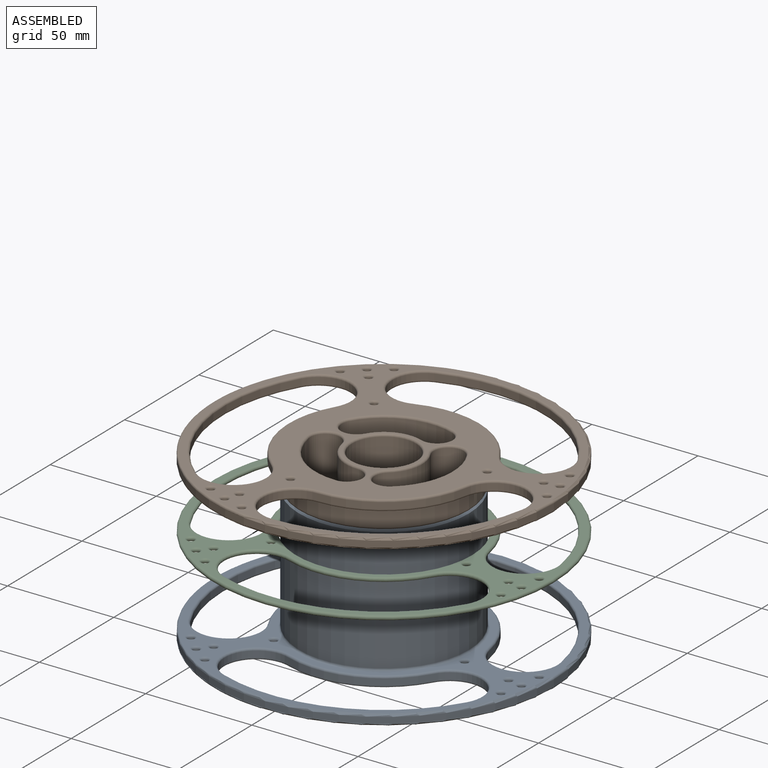
[diagram: assembled view]
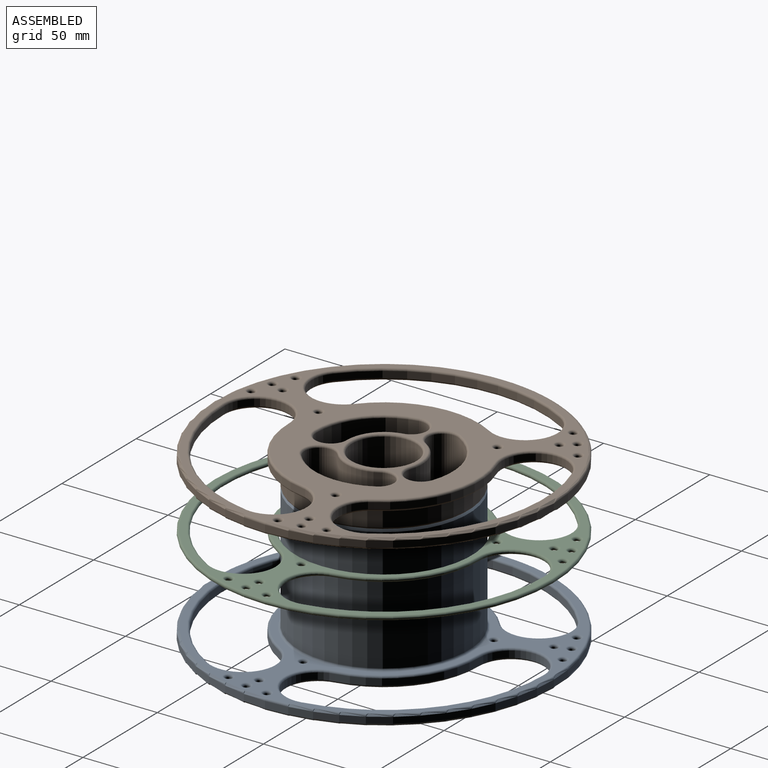
[diagram: assembled view, second angle]
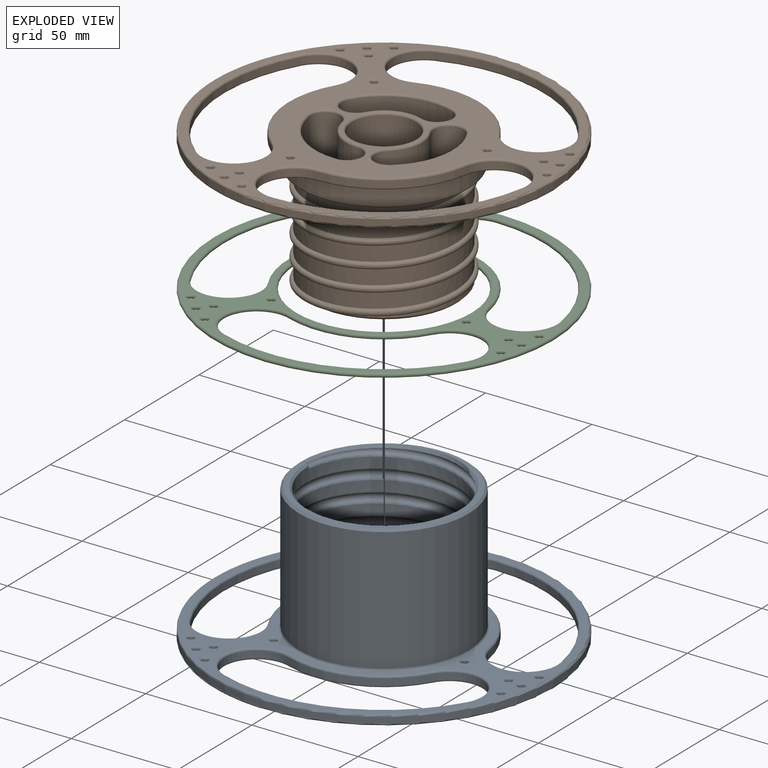
[diagram: exploded view]
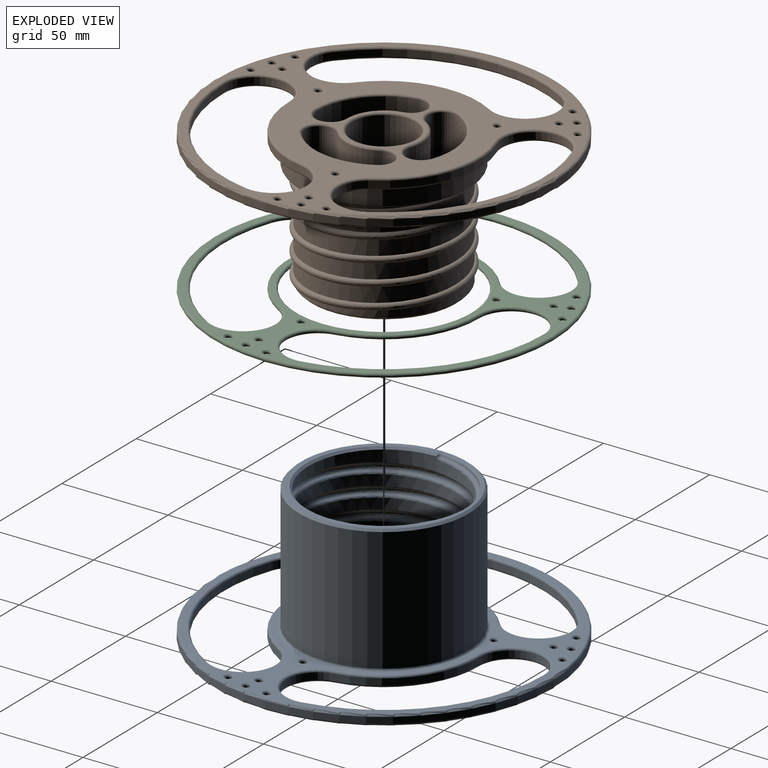
[diagram: exploded view, second angle]
ASSEMBLY  parts=3 mates=2
PART A: 147 faces, bbox 173.2x173.2x68.5 mm
  f0: cylinder r=35.5mm len=71mm, axis (0,0,-1), area 6596.6mm2, adj f54,f55,f56,f59,f62,f63
  f1: plane 69x69mm, normal (0,0,1), area 574.2mm2, adj f58,f59,f60,f66,f67,f68,f69,f96
  f2: cylinder r=40mm len=80mm, axis (0,0,-1), area 14577mm2, adj f53,f65
  f3: plane 78.06x78.06mm, normal (0,0,1), area 499.9mm2, adj f50,f51,f53,f54
  f4: cylinder r=7mm len=13.89mm, axis (0,0,1), area 66mm2, adj f5,f22,f68,f109
  f5: cylinder r=32mm len=31.51mm, axis (0,0,1), area 134mm2, adj f4,f6,f66,f107
  f6: cylinder r=7mm len=14mm, axis (0,0,1), area 66mm2, adj f5,f22,f67,f108
  f7: cylinder r=32mm len=38.66mm, axis (0,0,1), area 134mm2, adj f8,f23,f96,f137
  f8: cylinder r=7mm len=13.06mm, axis (0,0,1), area 66mm2, adj f7,f9,f97,f138
  f9: cylinder r=18mm len=21.75mm, axis (0,0,1), area 75.4mm2, adj f8,f23,f99,f140
  f10: cylinder r=32mm len=40.51mm, axis (0,0,1), area 134mm2, adj f11,f24,f100,f141
  f11: cylinder r=7mm len=13.06mm, axis (0,0,1), area 66mm2, adj f10,f12,f101,f142
  f12: cylinder r=18mm len=22.79mm, axis (0,0,1), area 75.4mm2, adj f11,f24,f103,f144
  f13: cylinder r=45mm len=54.36mm, axis (0,0,1), area 188.5mm2, adj f14,f38,f79,f120
  f14: cylinder r=15mm len=27.99mm, axis (0,0,1), area 141.4mm2, adj f13,f15,f81,f122
  f15: cylinder r=75mm len=90.6mm, axis (0,0,1), area 314.2mm2, adj f14,f38,f82,f123
  f16: cylinder r=15mm len=26.49mm, axis (0,0,1), area 141.4mm2, adj f17,f40,f72,f113
  f17: cylinder r=45mm len=56.97mm, axis (0,0,1), area 188.5mm2, adj f16,f18,f71,f112
  f18: cylinder r=15mm len=27.99mm, axis (0,0,1), area 141.4mm2, adj f17,f40,f73,f114
  f19: cylinder r=15mm len=29.77mm, axis (0,0,1), area 141.4mm2, adj f20,f42,f76,f117
  f20: cylinder r=45mm len=44.32mm, axis (0,0,1), area 188.5mm2, adj f19,f21,f75,f116
  f21: cylinder r=15mm len=30mm, axis (0,0,1), area 141.4mm2, adj f20,f42,f77,f118
  f22: cylinder r=18mm len=17.73mm, axis (0,0,1), area 75.4mm2, adj f4,f6,f69,f110
  f23: cylinder r=7mm len=13.58mm, axis (0,0,1), area 66mm2, adj f7,f9,f98,f139
  f24: cylinder r=7mm len=12.36mm, axis (0,0,1), area 66mm2, adj f10,f12,f102,f143
  f25: cylinder r=1.5mm len=3mm, axis (0,0,1), area 28.3mm2, adj f94,f135
  f26: cylinder r=1.5mm len=3mm, axis (0,0,1), area 28.3mm2, adj f95,f136
  f27: cylinder r=1.5mm len=3mm, axis (0,0,1), area 28.3mm2, adj f106,f146
  f28: cylinder r=80mm len=160mm, axis (0,0,1), area 1508mm2, adj f105,f145
  f29: cylinder r=1.5mm len=3mm, axis (0,0,1), area 28.3mm2, adj f83,f124
  f30: cylinder r=1.5mm len=3mm, axis (0,0,1), area 28.3mm2, adj f84,f125
  f31: cylinder r=1.5mm len=3mm, axis (0,0,1), area 28.3mm2, adj f85,f126
  f32: cylinder r=1.5mm len=3mm, axis (0,0,1), area 28.3mm2, adj f86,f127
  f33: cylinder r=1.5mm len=3mm, axis (0,0,1), area 28.3mm2, adj f87,f128
  f34: cylinder r=1.5mm len=3mm, axis (0,0,1), area 28.3mm2, adj f88,f129
  f35: cylinder r=1.5mm len=3mm, axis (0,0,1), area 28.3mm2, adj f89,f130
  f36: cylinder r=1.5mm len=3mm, axis (0,0,1), area 28.3mm2, adj f90,f131
  f37: cylinder r=1.5mm len=3mm, axis (0,0,1), area 28.3mm2, adj f91,f132
  f38: cylinder r=15mm len=29.1mm, axis (0,0,1), area 141.4mm2, adj f13,f15,f80,f121
  f39: cylinder r=1.5mm len=3mm, axis (0,0,1), area 28.3mm2, adj f93,f134
  f40: cylinder r=75mm len=94.95mm, axis (0,0,1), area 314.2mm2, adj f16,f18,f74,f115
  f41: cylinder r=1.5mm len=3mm, axis (0,0,1), area 28.3mm2, adj f92,f133
  f42: cylinder r=75mm len=73.86mm, axis (0,0,1), area 314.2mm2, adj f19,f21,f78,f119
  f43: cylinder r=1.5mm len=3mm, axis (0,0,1), area 28.3mm2, adj f70,f111
  f44: cylinder r=15.5mm len=31mm, axis (0,0,1), area 292.2mm2, adj f52,f104
  f45: plane 158x158mm, normal (0,0,-1), area 5679.5mm2, adj f64,f107,f108,f109,f110,f111,f112,f113
  f46: plane 158x158mm, normal (0,0,1), area 3575.9mm2, adj f65,f70,f71,f72,f73,f74,f75,f76
  f47: bspline ~74.4x74.4mm, area 5599.1mm2, adj f48,f49,f51,f56,f57,f58,f63
  f48: bspline ~3.43x3.4mm, area 8.3mm2, adj f47,f60,f61,f62
  f49: bspline ~1.67x1.6mm, area 1.3mm2, adj f47,f50,f55
  f50: bspline ~2.28x2.01mm, area 2.5mm2, adj f3,f49,f51,f54,f55
  f51: bspline ~57.46x35.97mm, area 107mm2, adj f3,f47,f50,f54,f63
  f52: cone r=16.5mm half-angle=45deg, axis (0,0,-1), area 99.6mm2, adj f44,f64
  f53: cone r=39mm half-angle=45deg, axis (0,0,-1), area 351mm2, adj f2,f3
  f54: cone r=35.5mm half-angle=45deg, axis (0,0,1), area 213.6mm2, adj f0,f3,f50,f51,f55,f63
  f55: bspline ~2.72x2.22mm, area 2.6mm2, adj f0,f49,f50,f54,f56
  f56: bspline ~72.29x72.29mm, area 1510.4mm2, adj f0,f47,f55,f57
  f57: bspline ~45.84x9.79mm, area 33.4mm2, adj f47,f56,f58,f59
  f58: bspline ~28.89x15.15mm, area 25.4mm2, adj f1,f47,f57,f60
  f59: torus R=34.5mm, axis (0,0,1), area 258.3mm2, adj f0,f1,f57,f61
  f60: bspline ~2.51x2.06mm, area 2.5mm2, adj f1,f48,f58,f61
  f61: bspline ~1.86x1.82mm, area 2.2mm2, adj f48,f59,f60,f62
  f62: bspline ~2.48x2.13mm, area 2.6mm2, adj f0,f48,f61,f63
  f63: bspline ~72.29x72.29mm, area 1513mm2, adj f0,f47,f51,f54,f62
  f64: torus R=16.91mm, axis (0,0,1), area 81.6mm2, adj f45,f52
  f65: torus R=41mm, axis (0,0,1), area 398.4mm2, adj f2,f46
  f66: torus R=33mm, axis (0,0,1), area 71mm2, adj f1,f5,f67,f68
  f67: torus R=8mm, axis (0,0,1), area 36.3mm2, adj f1,f6,f66,f69
  f68: torus R=8mm, axis (0,0,1), area 36.3mm2, adj f1,f4,f66,f69
  f69: torus R=17mm, axis (0,0,1), area 38.7mm2, adj f1,f22,f67,f68
  f70: torus R=2.5mm, axis (0,0,1), area 18.4mm2, adj f43,f46
  f71: torus R=44mm, axis (0,0,1), area 97.9mm2, adj f17,f46,f72,f73
  f72: torus R=16mm, axis (0,0,1), area 75.8mm2, adj f16,f46,f71,f74
  f73: torus R=16mm, axis (0,0,1), area 75.8mm2, adj f18,f46,f71,f74
  f74: torus R=76mm, axis (0,0,1), area 165.3mm2, adj f40,f46,f72,f73
  f75: torus R=44mm, axis (0,0,1), area 97.9mm2, adj f20,f46,f76,f77
  f76: torus R=16mm, axis (0,0,1), area 75.8mm2, adj f19,f46,f75,f78
  f77: torus R=16mm, axis (0,0,1), area 75.8mm2, adj f21,f46,f75,f78
  f78: torus R=76mm, axis (0,0,1), area 165.3mm2, adj f42,f46,f76,f77
  f79: torus R=44mm, axis (0,0,1), area 97.9mm2, adj f13,f46,f80,f81
  f80: torus R=16mm, axis (0,0,1), area 75.8mm2, adj f38,f46,f79,f82
  f81: torus R=16mm, axis (0,0,1), area 75.8mm2, adj f14,f46,f79,f82
  f82: torus R=76mm, axis (0,0,1), area 165.3mm2, adj f15,f46,f80,f81
  f83: torus R=2.5mm, axis (0,0,1), area 18.4mm2, adj f29,f46
  f84: torus R=2.5mm, axis (0,0,1), area 18.4mm2, adj f30,f46
  f85: torus R=2.5mm, axis (0,0,1), area 18.4mm2, adj f31,f46
  f86: torus R=2.5mm, axis (0,0,1), area 18.4mm2, adj f32,f46
  f87: torus R=2.5mm, axis (0,0,1), area 18.4mm2, adj f33,f46
  f88: torus R=2.5mm, axis (0,0,1), area 18.4mm2, adj f34,f46
  f89: torus R=2.5mm, axis (0,0,1), area 18.4mm2, adj f35,f46
  f90: torus R=2.5mm, axis (0,0,1), area 18.4mm2, adj f36,f46
  f91: torus R=2.5mm, axis (0,0,1), area 18.4mm2, adj f37,f46
  f92: torus R=2.5mm, axis (0,0,1), area 18.4mm2, adj f41,f46
  f93: torus R=2.5mm, axis (0,0,1), area 18.4mm2, adj f39,f46
  f94: torus R=2.5mm, axis (0,0,1), area 18.4mm2, adj f25,f46
  f95: torus R=2.5mm, axis (0,0,1), area 18.4mm2, adj f26,f46
  f96: torus R=33mm, axis (0,0,1), area 71mm2, adj f1,f7,f97,f98
  f97: torus R=8mm, axis (0,0,1), area 36.3mm2, adj f1,f8,f96,f99
  f98: torus R=8mm, axis (0,0,1), area 36.3mm2, adj f1,f23,f96,f99
  f99: torus R=17mm, axis (0,0,1), area 38.7mm2, adj f1,f9,f97,f98
  f100: torus R=33mm, axis (0,0,1), area 71mm2, adj f1,f10,f101,f102
  f101: torus R=8mm, axis (0,0,1), area 36.3mm2, adj f1,f11,f100,f103
  f102: torus R=8mm, axis (0,0,1), area 36.3mm2, adj f1,f24,f100,f103
  f103: torus R=17mm, axis (0,0,1), area 38.7mm2, adj f1,f12,f101,f102
  f104: torus R=16.5mm, axis (0,0,1), area 156.6mm2, adj f1,f44
  f105: torus R=79mm, axis (0,0,1), area 786mm2, adj f28,f46
  f106: torus R=2.5mm, axis (0,0,1), area 18.4mm2, adj f27,f46
  f107: torus R=33mm, axis (0,0,1), area 71mm2, adj f5,f45,f108,f109
  f108: torus R=8mm, axis (0,0,1), area 36.3mm2, adj f6,f45,f107,f110
  f109: torus R=8mm, axis (0,0,1), area 36.3mm2, adj f4,f45,f107,f110
  f110: torus R=17mm, axis (0,0,1), area 38.7mm2, adj f22,f45,f108,f109
  f111: torus R=2.5mm, axis (0,0,1), area 18.4mm2, adj f43,f45
  f112: torus R=44mm, axis (0,0,1), area 97.9mm2, adj f17,f45,f113,f114
  f113: torus R=16mm, axis (0,0,1), area 75.8mm2, adj f16,f45,f112,f115
  f114: torus R=16mm, axis (0,0,1), area 75.8mm2, adj f18,f45,f112,f115
  f115: torus R=76mm, axis (0,0,1), area 165.3mm2, adj f40,f45,f113,f114
  f116: torus R=44mm, axis (0,0,1), area 97.9mm2, adj f20,f45,f117,f118
  f117: torus R=16mm, axis (0,0,1), area 75.8mm2, adj f19,f45,f116,f119
  f118: torus R=16mm, axis (0,0,1), area 75.8mm2, adj f21,f45,f116,f119
  f119: torus R=76mm, axis (0,0,1), area 165.3mm2, adj f42,f45,f117,f118
  f120: torus R=44mm, axis (0,0,1), area 97.9mm2, adj f13,f45,f121,f122
  f121: torus R=16mm, axis (0,0,1), area 75.8mm2, adj f38,f45,f120,f123
  f122: torus R=16mm, axis (0,0,1), area 75.8mm2, adj f14,f45,f120,f123
  f123: torus R=76mm, axis (0,0,1), area 165.3mm2, adj f15,f45,f121,f122
  f124: torus R=2.5mm, axis (0,0,1), area 18.4mm2, adj f29,f45
  f125: torus R=2.5mm, axis (0,0,1), area 18.4mm2, adj f30,f45
  f126: torus R=2.5mm, axis (0,0,1), area 18.4mm2, adj f31,f45
  f127: torus R=2.5mm, axis (0,0,1), area 18.4mm2, adj f32,f45
  f128: torus R=2.5mm, axis (0,0,1), area 18.4mm2, adj f33,f45
  f129: torus R=2.5mm, axis (0,0,1), area 18.4mm2, adj f34,f45
  f130: torus R=2.5mm, axis (0,0,1), area 18.4mm2, adj f35,f45
  f131: torus R=2.5mm, axis (0,0,1), area 18.4mm2, adj f36,f45
  f132: torus R=2.5mm, axis (0,0,1), area 18.4mm2, adj f37,f45
  f133: torus R=2.5mm, axis (0,0,1), area 18.4mm2, adj f41,f45
  f134: torus R=2.5mm, axis (0,0,1), area 18.4mm2, adj f39,f45
  f135: torus R=2.5mm, axis (0,0,1), area 18.4mm2, adj f25,f45
  f136: torus R=2.5mm, axis (0,0,1), area 18.4mm2, adj f26,f45
  f137: torus R=33mm, axis (0,0,1), area 71mm2, adj f7,f45,f138,f139
  f138: torus R=8mm, axis (0,0,1), area 36.3mm2, adj f8,f45,f137,f140
  f139: torus R=8mm, axis (0,0,1), area 36.3mm2, adj f23,f45,f137,f140
  f140: torus R=17mm, axis (0,0,1), area 38.7mm2, adj f9,f45,f138,f139
  f141: torus R=33mm, axis (0,0,1), area 71mm2, adj f10,f45,f142,f143
  f142: torus R=8mm, axis (0,0,1), area 36.3mm2, adj f11,f45,f141,f144
  f143: torus R=8mm, axis (0,0,1), area 36.3mm2, adj f24,f45,f141,f144
  f144: torus R=17mm, axis (0,0,1), area 38.7mm2, adj f12,f45,f142,f143
  f145: torus R=79mm, axis (0,0,1), area 786mm2, adj f28,f45
  f146: torus R=2.5mm, axis (0,0,1), area 18.4mm2, adj f27,f45
PART B: 125 faces, bbox 173.9x173.9x68.8 mm
  f0: bspline ~1.49x1.47mm, area 0.3mm2, adj f1,f4,f52
  f1: bspline ~73x73mm, area 5200.9mm2, adj f0,f3,f4,f49,f50,f51,f53
  f2: cylinder r=40mm len=80mm, axis (0,0,-1), area 2010.6mm2, adj f54,f124
  f3: plane 78.76x78.76mm, normal (0,0,1), area 890.8mm2, adj f1,f4,f49,f124
  f4: cylinder r=35mm len=70mm, axis (0,0,-1), area 7927.5mm2, adj f0,f1,f3,f49,f53
  f5: cylinder r=18mm len=64mm, axis (0,0,-1), area 1608.5mm2, adj f6,f14,f18,f106
  f6: cylinder r=7mm len=64mm, axis (0,0,-1), area 1407.4mm2, adj f5,f7,f18,f108
  f7: cylinder r=32mm len=64mm, axis (0,0,-1), area 2859.5mm2, adj f6,f14,f18,f109
  f8: cylinder r=7mm len=64mm, axis (0,0,-1), area 1407.4mm2, adj f9,f16,f18,f84
  f9: cylinder r=18mm len=64mm, axis (0,0,-1), area 1608.5mm2, adj f8,f10,f18,f83
  f10: cylinder r=7mm len=64mm, axis (0,0,-1), area 1407.4mm2, adj f9,f16,f18,f85
  f11: cylinder r=7mm len=64mm, axis (0,0,-1), area 1407.4mm2, adj f12,f17,f18,f88
  f12: cylinder r=18mm len=64mm, axis (0,0,-1), area 1608.5mm2, adj f11,f13,f18,f87
  f13: cylinder r=7mm len=64mm, axis (0,0,-1), area 1407.4mm2, adj f12,f17,f18,f89
  f14: cylinder r=7mm len=64mm, axis (0,0,-1), area 1407.4mm2, adj f5,f7,f18,f107
  f15: cylinder r=15mm len=64mm, axis (0,0,-1), area 6031.9mm2, adj f18,f110
  f16: cylinder r=32mm len=64mm, axis (0,0,-1), area 2859.5mm2, adj f8,f10,f18,f86
  f17: cylinder r=32mm len=64mm, axis (0,0,-1), area 2859.5mm2, adj f11,f13,f18,f90
  f18: plane 68x68mm, normal (0,0,1), area 989.1mm2, adj f5,f6,f7,f8,f9,f10,f11,f12
  f19: cylinder r=45mm len=54.36mm, axis (0,0,1), area 188.5mm2, adj f20,f40,f66,f102
  f20: cylinder r=15mm len=27.99mm, axis (0,0,1), area 141.4mm2, adj f19,f21,f65,f101
  f21: cylinder r=75mm len=90.6mm, axis (0,0,1), area 314.2mm2, adj f20,f40,f63,f99
  f22: cylinder r=15mm len=26.49mm, axis (0,0,1), area 141.4mm2, adj f23,f42,f60,f96
  f23: cylinder r=45mm len=56.97mm, axis (0,0,1), area 188.5mm2, adj f22,f24,f59,f95
  f24: cylinder r=15mm len=27.99mm, axis (0,0,1), area 141.4mm2, adj f23,f42,f61,f97
  f25: cylinder r=15mm len=29.77mm, axis (0,0,1), area 141.4mm2, adj f26,f44,f56,f92
  f26: cylinder r=45mm len=44.32mm, axis (0,0,1), area 188.5mm2, adj f25,f27,f55,f91
  f27: cylinder r=15mm len=30mm, axis (0,0,1), area 141.4mm2, adj f26,f44,f57,f93
  f28: cylinder r=1.5mm len=3mm, axis (0,0,1), area 28.3mm2, adj f82,f123
  f29: cylinder r=1.5mm len=3mm, axis (0,0,1), area 28.3mm2, adj f81,f122
  f30: cylinder r=80mm len=160mm, axis (0,0,1), area 1508mm2, adj f79,f120
  f31: cylinder r=1.5mm len=3mm, axis (0,0,1), area 28.3mm2, adj f78,f119
  f32: cylinder r=1.5mm len=3mm, axis (0,0,1), area 28.3mm2, adj f77,f118
  f33: cylinder r=1.5mm len=3mm, axis (0,0,1), area 28.3mm2, adj f76,f117
  f34: cylinder r=1.5mm len=3mm, axis (0,0,1), area 28.3mm2, adj f75,f116
  f35: cylinder r=1.5mm len=3mm, axis (0,0,1), area 28.3mm2, adj f74,f115
  f36: cylinder r=1.5mm len=3mm, axis (0,0,1), area 28.3mm2, adj f73,f114
  f37: cylinder r=1.5mm len=3mm, axis (0,0,1), area 28.3mm2, adj f72,f113
  f38: cylinder r=1.5mm len=3mm, axis (0,0,1), area 28.3mm2, adj f71,f112
  f39: cylinder r=1.5mm len=3mm, axis (0,0,1), area 28.3mm2, adj f70,f111
  f40: cylinder r=15mm len=29.1mm, axis (0,0,1), area 141.4mm2, adj f19,f21,f64,f100
  f41: cylinder r=1.5mm len=3mm, axis (0,0,1), area 28.3mm2, adj f69,f105
  f42: cylinder r=75mm len=94.95mm, axis (0,0,1), area 314.2mm2, adj f22,f24,f62,f98
  f43: cylinder r=1.5mm len=3mm, axis (0,0,1), area 28.3mm2, adj f68,f104
  f44: cylinder r=75mm len=73.86mm, axis (0,0,1), area 314.2mm2, adj f25,f27,f58,f94
  f45: cylinder r=1.5mm len=3mm, axis (0,0,1), area 28.3mm2, adj f67,f103
  f46: cylinder r=1.5mm len=3mm, axis (0,0,1), area 28.3mm2, adj f80,f121
  f47: plane 158x158mm, normal (0,0,-1), area 5774mm2, adj f83,f84,f85,f86,f87,f88,f89,f90
  f48: plane 158x158mm, normal (0,0,1), area 3575.9mm2, adj f54,f55,f56,f57,f58,f59,f60,f61
  f49: bspline ~1.84x1.69mm, area 3.6mm2, adj f1,f3,f4
  f50: plane 28.71x15.57mm, normal (0,0,1), area 55.1mm2, adj f1,f18,f51,f52,f53
  f51: bspline ~27.02x15.59mm, area 30.6mm2, adj f1,f50,f52
  f52: bspline ~2.67x1.37mm, area 1.9mm2, adj f0,f50,f51,f53
  f53: cone r=34mm half-angle=45deg, axis (0,0,-1), area 252.5mm2, adj f1,f4,f18,f50,f52
  f54: torus R=41mm, axis (0,0,1), area 398.4mm2, adj f2,f48
  f55: torus R=44mm, axis (0,0,1), area 97.9mm2, adj f26,f48,f56,f57
  f56: torus R=16mm, axis (0,0,1), area 75.8mm2, adj f25,f48,f55,f58
  f57: torus R=16mm, axis (0,0,1), area 75.8mm2, adj f27,f48,f55,f58
  f58: torus R=76mm, axis (0,0,1), area 165.3mm2, adj f44,f48,f56,f57
  f59: torus R=44mm, axis (0,0,1), area 97.9mm2, adj f23,f48,f60,f61
  f60: torus R=16mm, axis (0,0,1), area 75.8mm2, adj f22,f48,f59,f62
  f61: torus R=16mm, axis (0,0,1), area 75.8mm2, adj f24,f48,f59,f62
  f62: torus R=76mm, axis (0,0,1), area 165.3mm2, adj f42,f48,f60,f61
  f63: torus R=76mm, axis (0,0,1), area 165.3mm2, adj f21,f48,f64,f65
  f64: torus R=16mm, axis (0,0,1), area 75.8mm2, adj f40,f48,f63,f66
  f65: torus R=16mm, axis (0,0,1), area 75.8mm2, adj f20,f48,f63,f66
  f66: torus R=44mm, axis (0,0,1), area 97.9mm2, adj f19,f48,f64,f65
  f67: torus R=2.5mm, axis (0,0,1), area 18.4mm2, adj f45,f48
  f68: torus R=2.5mm, axis (0,0,1), area 18.4mm2, adj f43,f48
  f69: torus R=2.5mm, axis (0,0,1), area 18.4mm2, adj f41,f48
  f70: torus R=2.5mm, axis (0,0,1), area 18.4mm2, adj f39,f48
  f71: torus R=2.5mm, axis (0,0,1), area 18.4mm2, adj f38,f48
  f72: torus R=2.5mm, axis (0,0,1), area 18.4mm2, adj f37,f48
  f73: torus R=2.5mm, axis (0,0,1), area 18.4mm2, adj f36,f48
  f74: torus R=2.5mm, axis (0,0,1), area 18.4mm2, adj f35,f48
  f75: torus R=2.5mm, axis (0,0,1), area 18.4mm2, adj f34,f48
  f76: torus R=2.5mm, axis (0,0,1), area 18.4mm2, adj f33,f48
  f77: torus R=2.5mm, axis (0,0,1), area 18.4mm2, adj f32,f48
  f78: torus R=2.5mm, axis (0,0,1), area 18.4mm2, adj f31,f48
  f79: torus R=79mm, axis (0,0,1), area 786mm2, adj f30,f48
  f80: torus R=2.5mm, axis (0,0,1), area 18.4mm2, adj f46,f48
  f81: torus R=2.5mm, axis (0,0,1), area 18.4mm2, adj f29,f48
  f82: torus R=2.5mm, axis (0,0,1), area 18.4mm2, adj f28,f48
  f83: torus R=17mm, axis (0,0,1), area 38.7mm2, adj f9,f47,f84,f85
  f84: torus R=8mm, axis (0,0,1), area 36.3mm2, adj f8,f47,f83,f86
  f85: torus R=8mm, axis (0,0,1), area 36.3mm2, adj f10,f47,f83,f86
  f86: torus R=33mm, axis (0,0,1), area 71mm2, adj f16,f47,f84,f85
  f87: torus R=17mm, axis (0,0,1), area 38.7mm2, adj f12,f47,f88,f89
  f88: torus R=8mm, axis (0,0,1), area 36.3mm2, adj f11,f47,f87,f90
  f89: torus R=8mm, axis (0,0,1), area 36.3mm2, adj f13,f47,f87,f90
  f90: torus R=33mm, axis (0,0,1), area 71mm2, adj f17,f47,f88,f89
  f91: torus R=44mm, axis (0,0,1), area 97.9mm2, adj f26,f47,f92,f93
  f92: torus R=16mm, axis (0,0,1), area 75.8mm2, adj f25,f47,f91,f94
  f93: torus R=16mm, axis (0,0,1), area 75.8mm2, adj f27,f47,f91,f94
  f94: torus R=76mm, axis (0,0,1), area 165.3mm2, adj f44,f47,f92,f93
  f95: torus R=44mm, axis (0,0,1), area 97.9mm2, adj f23,f47,f96,f97
  f96: torus R=16mm, axis (0,0,1), area 75.8mm2, adj f22,f47,f95,f98
  f97: torus R=16mm, axis (0,0,1), area 75.8mm2, adj f24,f47,f95,f98
  f98: torus R=76mm, axis (0,0,1), area 165.3mm2, adj f42,f47,f96,f97
  f99: torus R=76mm, axis (0,0,1), area 165.3mm2, adj f21,f47,f100,f101
  f100: torus R=16mm, axis (0,0,1), area 75.8mm2, adj f40,f47,f99,f102
  f101: torus R=16mm, axis (0,0,1), area 75.8mm2, adj f20,f47,f99,f102
  f102: torus R=44mm, axis (0,0,1), area 97.9mm2, adj f19,f47,f100,f101
  f103: torus R=2.5mm, axis (0,0,1), area 18.4mm2, adj f45,f47
  f104: torus R=2.5mm, axis (0,0,1), area 18.4mm2, adj f43,f47
  f105: torus R=2.5mm, axis (0,0,1), area 18.4mm2, adj f41,f47
  f106: torus R=17mm, axis (0,0,1), area 38.7mm2, adj f5,f47,f107,f108
  f107: torus R=8mm, axis (0,0,1), area 36.3mm2, adj f14,f47,f106,f109
  f108: torus R=8mm, axis (0,0,1), area 36.3mm2, adj f6,f47,f106,f109
  f109: torus R=33mm, axis (0,0,1), area 71mm2, adj f7,f47,f107,f108
  f110: torus R=16mm, axis (0,0,1), area 151.6mm2, adj f15,f47
  f111: torus R=2.5mm, axis (0,0,1), area 18.4mm2, adj f39,f47
  f112: torus R=2.5mm, axis (0,0,1), area 18.4mm2, adj f38,f47
  f113: torus R=2.5mm, axis (0,0,1), area 18.4mm2, adj f37,f47
  f114: torus R=2.5mm, axis (0,0,1), area 18.4mm2, adj f36,f47
  f115: torus R=2.5mm, axis (0,0,1), area 18.4mm2, adj f35,f47
  f116: torus R=2.5mm, axis (0,0,1), area 18.4mm2, adj f34,f47
  f117: torus R=2.5mm, axis (0,0,1), area 18.4mm2, adj f33,f47
  f118: torus R=2.5mm, axis (0,0,1), area 18.4mm2, adj f32,f47
  f119: torus R=2.5mm, axis (0,0,1), area 18.4mm2, adj f31,f47
  f120: torus R=79mm, axis (0,0,1), area 786mm2, adj f30,f47
  f121: torus R=2.5mm, axis (0,0,1), area 18.4mm2, adj f46,f47
  f122: torus R=2.5mm, axis (0,0,1), area 18.4mm2, adj f29,f47
  f123: torus R=2.5mm, axis (0,0,1), area 18.4mm2, adj f28,f47
  f124: torus R=39mm, axis (0,0,1), area 391.2mm2, adj f2,f3
PART C: 31 faces, bbox 173.2x173.2x2 mm
  f0: plane 158x158mm, normal (0,0,-1), area 3315.2mm2, adj f2,f3,f4,f5,f6,f7,f8,f9
  f1: plane 158x158mm, normal (0,0,1), area 3315.2mm2, adj f2,f3,f4,f5,f6,f7,f8,f9
  f2: torus R=44mm, axis (0,0,1), area 195.8mm2, adj f0,f1,f3,f4
  f3: torus R=16mm, axis (0,0,1), area 151.6mm2, adj f0,f1,f2,f5
  f4: torus R=16mm, axis (0,0,1), area 151.6mm2, adj f0,f1,f2,f5
  f5: torus R=76mm, axis (0,0,1), area 330.6mm2, adj f0,f1,f3,f4
  f6: torus R=44mm, axis (0,0,1), area 195.8mm2, adj f0,f1,f7,f8
  f7: torus R=16mm, axis (0,0,1), area 151.6mm2, adj f0,f1,f6,f9
  f8: torus R=16mm, axis (0,0,1), area 151.6mm2, adj f0,f1,f6,f9
  f9: torus R=76mm, axis (0,0,1), area 330.6mm2, adj f0,f1,f7,f8
  f10: torus R=76mm, axis (0,0,1), area 330.6mm2, adj f0,f1,f11,f12
  f11: torus R=16mm, axis (0,0,1), area 151.6mm2, adj f0,f1,f10,f13
  f12: torus R=16mm, axis (0,0,1), area 151.6mm2, adj f0,f1,f10,f13
  f13: torus R=44mm, axis (0,0,1), area 195.8mm2, adj f0,f1,f11,f12
  f14: torus R=2.5mm, axis (0,0,1), area 36.8mm2, adj f0,f1
  f15: torus R=2.5mm, axis (0,0,1), area 36.8mm2, adj f0,f1
  f16: torus R=2.5mm, axis (0,0,1), area 36.8mm2, adj f0,f1
  f17: torus R=42mm, axis (0,0,1), area 816.5mm2, adj f0,f1
  f18: torus R=2.5mm, axis (0,0,1), area 36.8mm2, adj f0,f1
  f19: torus R=2.5mm, axis (0,0,1), area 36.8mm2, adj f0,f1
  f20: torus R=2.5mm, axis (0,0,1), area 36.8mm2, adj f0,f1
  f21: torus R=2.5mm, axis (0,0,1), area 36.8mm2, adj f0,f1
  f22: torus R=2.5mm, axis (0,0,1), area 36.8mm2, adj f0,f1
  f23: torus R=2.5mm, axis (0,0,1), area 36.8mm2, adj f0,f1
  f24: torus R=2.5mm, axis (0,0,1), area 36.8mm2, adj f0,f1
  f25: torus R=2.5mm, axis (0,0,1), area 36.8mm2, adj f0,f1
  f26: torus R=2.5mm, axis (0,0,1), area 36.8mm2, adj f0,f1
  f27: torus R=79mm, axis (0,0,1), area 1572mm2, adj f0,f1
  f28: torus R=2.5mm, axis (0,0,1), area 36.8mm2, adj f0,f1
  f29: torus R=2.5mm, axis (0,0,1), area 36.8mm2, adj f0,f1
  f30: torus R=2.5mm, axis (0,0,1), area 36.8mm2, adj f0,f1
PLACE A t=(-48.98,-62.56,-78.92)mm fixed
PLACE B rot(axis=(1,0,0),180deg) t=(-48.98,-62.56,-8.92)mm
PLACE C t=(-48.98,-62.56,-37.12)mm
MATE slider A.f0 <-> C.f2  axis (0,0,-1) through (-48.98,-62.56,-77.92)mm
MATE slider B.f2 <-> A.f0  axis (0,0,1) through (-48.98,-62.56,-68.92)mm
